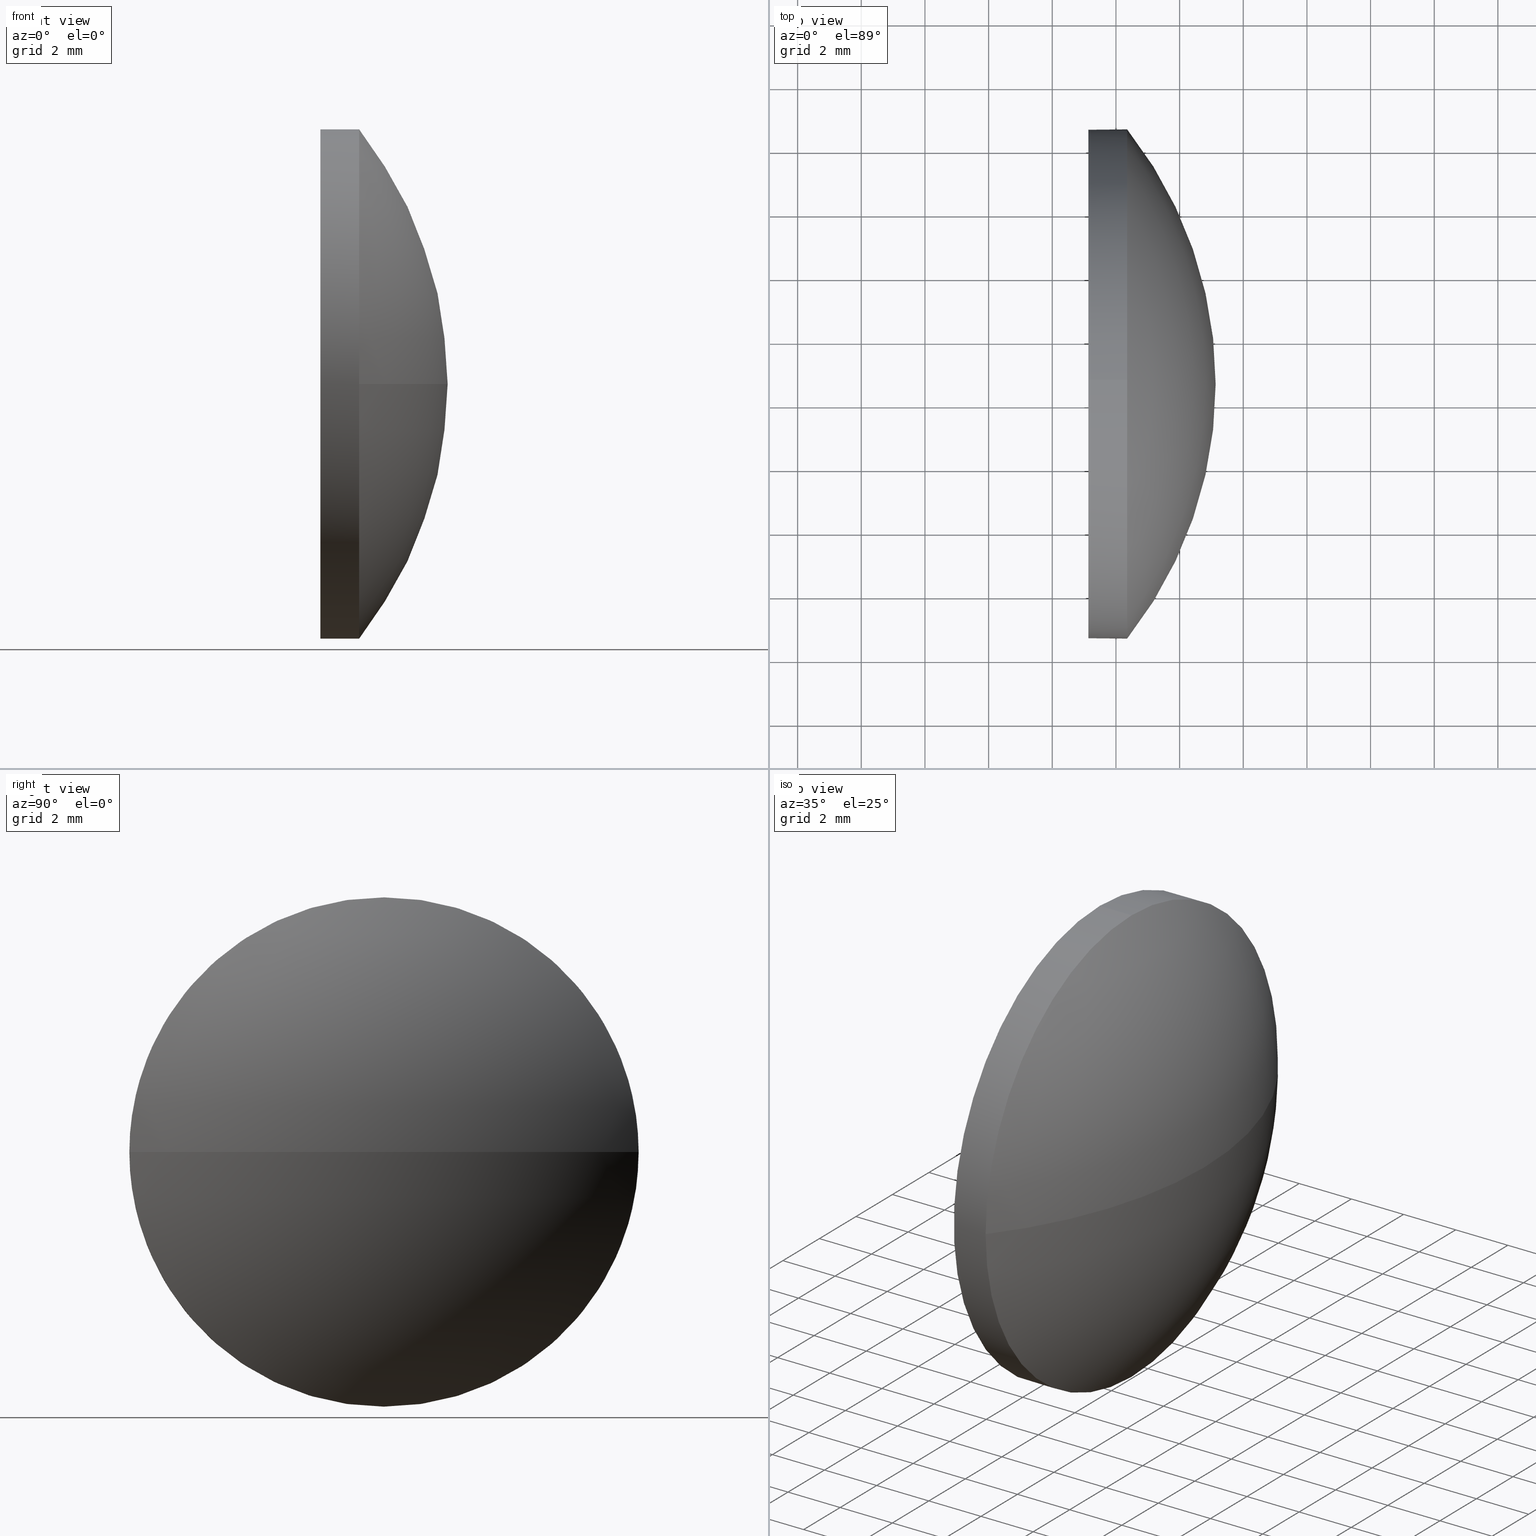
[diagram: canonical four-view strip — front | top / right | iso, engineering-drawing reading convention]
A machine part, canonical four-view strip (front | top / right | iso — engineering-drawing reading convention). The complete STEP part file that produces these views, byte-faithful:
ISO-10303-21;
HEADER;
FILE_DESCRIPTION (( 'STEP AP214' ),
    '1' );
FILE_NAME ('100198.STEP',
    '2019-05-22T06:26:04',
    ( '' ),
    ( '' ),
    'SwSTEP 2.0',
    'SolidWorks 2016',
    '' );
FILE_SCHEMA (( 'AUTOMOTIVE_DESIGN' ));
ENDSEC;

DATA;
#1 = AXIS2_PLACEMENT_3D ( 'NONE', #136, #70, #142 ) ;
#2 =( NAMED_UNIT ( * ) SI_UNIT ( $, .STERADIAN. ) SOLID_ANGLE_UNIT ( ) );
#3 = AXIS2_PLACEMENT_3D ( 'NONE', #152, #55, #153 ) ;
#4 = CARTESIAN_POINT ( 'NONE',  ( 473.4849682115519700, -39.39311848752240100, -8.000000000000000000 ) ) ;
#5 = PRODUCT_DEFINITION_CONTEXT ( 'detailed design', #130, 'design' ) ;
#6 = VERTEX_POINT ( 'NONE', #114 ) ;
#7 = LINE ( 'NONE', #4, #91 ) ;
#8 =( NAMED_UNIT ( * ) SI_UNIT ( $, .STERADIAN. ) SOLID_ANGLE_UNIT ( ) );
#9 = ORIENTED_EDGE ( 'NONE', *, *, #20, .T. ) ;
#10 = PRESENTATION_STYLE_ASSIGNMENT (( #133 ) ) ;
#11 = UNCERTAINTY_MEASURE_WITH_UNIT (LENGTH_MEASURE( 1.000000000000000100E-005 ), #26, 'distance_accuracy_value', 'NONE');
#12 = EDGE_CURVE ( 'NONE', #6, #118, #7, .T. ) ;
#13 = PLANE ( 'NONE',  #3 ) ;
#14 = ORIENTED_EDGE ( 'NONE', *, *, #183, .F. ) ;
#15 = CARTESIAN_POINT ( 'NONE',  ( 479.1329406845434800, -39.39311848752242900, 0.0000000000000000000 ) ) ;
#16 = FACE_OUTER_BOUND ( 'NONE', #78, .T. ) ;
#17 = DIRECTION ( 'NONE',  ( 0.0000000000000000000, 0.0000000000000000000, 1.000000000000000000 ) ) ;
#18 = DIRECTION ( 'NONE',  ( -1.000000000000000000, -0.0000000000000000000, -0.0000000000000000000 ) ) ;
#19 = SPHERICAL_SURFACE ( 'NONE', #51, 12.90079136690647800 ) ;
#20 = EDGE_CURVE ( 'NONE', #6, #125, #148, .T. ) ;
#21 = SURFACE_SIDE_STYLE ('',( #49 ) ) ;
#22 = CIRCLE ( 'NONE', #27, 12.90079136690647800 ) ;
#23 = EDGE_CURVE ( 'NONE', #125, #62, #137, .T. ) ;
#24 = AXIS2_PLACEMENT_3D ( 'NONE', #66, #81, #181 ) ;
#25 = FILL_AREA_STYLE_COLOUR ( '', #129 ) ;
#26 =( LENGTH_UNIT ( ) NAMED_UNIT ( * ) SI_UNIT ( .MILLI., .METRE. ) );
#27 = AXIS2_PLACEMENT_3D ( 'NONE', #112, #138, #45 ) ;
#28 =( NAMED_UNIT ( * ) PLANE_ANGLE_UNIT ( ) SI_UNIT ( $, .RADIAN. ) );
#29 = DIRECTION ( 'NONE',  ( 0.0000000000000000000, 0.0000000000000000000, 1.000000000000000000 ) ) ;
#30 = CARTESIAN_POINT ( 'NONE',  ( 476.3529406845434600, -31.39311848752240800, 0.0000000000000000000 ) ) ;
#31 = EDGE_CURVE ( 'NONE', #62, #146, #170, .T. ) ;
#32 = ORIENTED_EDGE ( 'NONE', *, *, #12, .T. ) ;
#33 = PRODUCT_DEFINITION_SHAPE ( 'NONE', 'NONE',  #102 ) ;
#34 = FACE_OUTER_BOUND ( 'NONE', #93, .T. ) ;
#35 = ORIENTED_EDGE ( 'NONE', *, *, #38, .T. ) ;
#36 = DIRECTION ( 'NONE',  ( 0.0000000000000000000, 0.0000000000000000000, 1.000000000000000000 ) ) ;
#37 = DIRECTION ( 'NONE',  ( -1.000000000000000000, -0.0000000000000000000, -0.0000000000000000000 ) ) ;
#38 = EDGE_CURVE ( 'NONE', #146, #118, #131, .T. ) ;
#39 = CARTESIAN_POINT ( 'NONE',  ( 466.2321493176370400, -39.39311848752242900, 0.0000000000000000000 ) ) ;
#40 = ORIENTED_EDGE ( 'NONE', *, *, #77, .F. ) ;
#41 = SPHERICAL_SURFACE ( 'NONE', #128, 12.90079136690647800 ) ;
#42 = UNCERTAINTY_MEASURE_WITH_UNIT (LENGTH_MEASURE( 1.000000000000000100E-005 ), #63, 'distance_accuracy_value', 'NONE');
#43 = CARTESIAN_POINT ( 'NONE',  ( 473.4849682115519700, -39.39311848752240100, 0.0000000000000000000 ) ) ;
#44 = ORIENTED_EDGE ( 'NONE', *, *, #183, .T. ) ;
#45 = DIRECTION ( 'NONE',  ( 0.0000000000000000000, 1.000000000000000000, 1.224646799147353200E-016 ) ) ;
#46 = FILL_AREA_STYLE_COLOUR ( '', #166 ) ;
#47 = CARTESIAN_POINT ( 'NONE',  ( 476.3529406845434600, -39.39311848752240100, 0.0000000000000000000 ) ) ;
#48 = EDGE_LOOP ( 'NONE', ( #104, #9, #50, #52, #119 ) ) ;
#49 = SURFACE_STYLE_FILL_AREA ( #163 ) ;
#50 = ORIENTED_EDGE ( 'NONE', *, *, #23, .T. ) ;
#51 = AXIS2_PLACEMENT_3D ( 'NONE', #82, #182, #98 ) ;
#52 = ORIENTED_EDGE ( 'NONE', *, *, #31, .T. ) ;
#53 = CIRCLE ( 'NONE', #151, 8.000000000000000000 ) ;
#54 = STYLED_ITEM ( 'NONE', ( #141 ), #139 ) ;
#55 = DIRECTION ( 'NONE',  ( 1.000000000000000000, 0.0000000000000000000, 0.0000000000000000000 ) ) ;
#56 = DIRECTION ( 'NONE',  ( -1.000000000000000000, -0.0000000000000000000, -0.0000000000000000000 ) ) ;
#57 = DIRECTION ( 'NONE',  ( -1.000000000000000000, -0.0000000000000000000, -0.0000000000000000000 ) ) ;
#58 = AXIS2_PLACEMENT_3D ( 'NONE', #115, #100, #175 ) ;
#59 =( GEOMETRIC_REPRESENTATION_CONTEXT ( 3 ) GLOBAL_UNCERTAINTY_ASSIGNED_CONTEXT ( ( #103 ) ) GLOBAL_UNIT_ASSIGNED_CONTEXT ( ( #87, #28, #2 ) ) REPRESENTATION_CONTEXT ( 'NONE', 'WORKASPACE' ) );
#60 = FACE_OUTER_BOUND ( 'NONE', #48, .T. ) ;
#61 = PRESENTATION_LAYER_ASSIGNMENT (  '', '', ( #169 ) ) ;
#62 = VERTEX_POINT ( 'NONE', #144 ) ;
#63 =( LENGTH_UNIT ( ) NAMED_UNIT ( * ) SI_UNIT ( .MILLI., .METRE. ) );
#64 =( GEOMETRIC_REPRESENTATION_CONTEXT ( 3 ) GLOBAL_UNCERTAINTY_ASSIGNED_CONTEXT ( ( #42 ) ) GLOBAL_UNIT_ASSIGNED_CONTEXT ( ( #63, #76, #8 ) ) REPRESENTATION_CONTEXT ( 'NONE', 'WORKASPACE' ) );
#65 = PRODUCT_RELATED_PRODUCT_CATEGORY ( 'part', '', ( #94 ) ) ;
#66 = CARTESIAN_POINT ( 'NONE',  ( 466.2321493176370400, -39.39311848752242900, 0.0000000000000000000 ) ) ;
#67 = DIRECTION ( 'NONE',  ( -1.000000000000000000, -0.0000000000000000000, -0.0000000000000000000 ) ) ;
#68 =( NAMED_UNIT ( * ) SI_UNIT ( $, .STERADIAN. ) SOLID_ANGLE_UNIT ( ) );
#69 = APPLICATION_PROTOCOL_DEFINITION ( 'draft international standard', 'automotive_design', 1998, #110 ) ;
#70 = DIRECTION ( 'NONE',  ( 0.0000000000000000000, 0.0000000000000000000, 1.000000000000000000 ) ) ;
#71 = VERTEX_POINT ( 'NONE', #30 ) ;
#72 = SURFACE_STYLE_USAGE ( .BOTH. , #186 ) ;
#73 = DIRECTION ( 'NONE',  ( 0.0000000000000000000, 0.0000000000000000000, 1.000000000000000000 ) ) ;
#74 = MANIFOLD_SOLID_BREP ( '��ת1', #113 ) ;
#75 = ORIENTED_EDGE ( 'NONE', *, *, #31, .F. ) ;
#76 =( NAMED_UNIT ( * ) PLANE_ANGLE_UNIT ( ) SI_UNIT ( $, .RADIAN. ) );
#77 = EDGE_CURVE ( 'NONE', #109, #125, #22, .T. ) ;
#78 = EDGE_LOOP ( 'NONE', ( #44, #32, #149, #75, #80 ) ) ;
#79 = CYLINDRICAL_SURFACE ( 'NONE', #180, 8.000000000000000000 ) ;
#80 = ORIENTED_EDGE ( 'NONE', *, *, #134, .T. ) ;
#81 = DIRECTION ( 'NONE',  ( -0.0000000000000000000, 0.0000000000000000000, 1.000000000000000000 ) ) ;
#82 = CARTESIAN_POINT ( 'NONE',  ( 466.2321493176370400, -39.39311848752242900, 0.0000000000000000000 ) ) ;
#83 = ORIENTED_EDGE ( 'NONE', *, *, #177, .F. ) ;
#84 = VECTOR ( 'NONE', #18, 1000.000000000000000 ) ;
#85 = CARTESIAN_POINT ( 'NONE',  ( 475.1329406845434300, -39.39311848752240100, 0.0000000000000000000 ) ) ;
#86 = DIRECTION ( 'NONE',  ( -0.0000000000000000000, 0.0000000000000000000, -1.000000000000000000 ) ) ;
#87 =( LENGTH_UNIT ( ) NAMED_UNIT ( * ) SI_UNIT ( .MILLI., .METRE. ) );
#88 = PRESENTATION_LAYER_ASSIGNMENT (  '', '', ( #54 ) ) ;
#89 = CARTESIAN_POINT ( 'NONE',  ( 473.4849682115519700, -39.39311848752240100, 8.000000000000000000 ) ) ;
#90 = CIRCLE ( 'NONE', #24, 12.90079136690647100 ) ;
#91 = VECTOR ( 'NONE', #161, 1000.000000000000000 ) ;
#92 = MECHANICAL_DESIGN_GEOMETRIC_PRESENTATION_REPRESENTATION (  '', ( #169 ), #64 ) ;
#93 = EDGE_LOOP ( 'NONE', ( #35, #154 ) ) ;
#94 = PRODUCT ( '100198', '100198', '', ( #99 ) ) ;
#95 = CYLINDRICAL_SURFACE ( 'NONE', #117, 8.000000000000000000 ) ;
#96 = MECHANICAL_DESIGN_GEOMETRIC_PRESENTATION_REPRESENTATION (  '', ( #54 ), #59 ) ;
#97 = CARTESIAN_POINT ( 'NONE',  ( 476.3529406845434600, -39.39311848752240100, 0.0000000000000000000 ) ) ;
#98 = DIRECTION ( 'NONE',  ( 0.0000000000000000000, 1.000000000000000000, 0.0000000000000000000 ) ) ;
#99 = PRODUCT_CONTEXT ( 'NONE', #110, 'mechanical' ) ;
#100 = DIRECTION ( 'NONE',  ( -1.000000000000000000, -0.0000000000000000000, -0.0000000000000000000 ) ) ;
#101 = ADVANCED_FACE ( 'NONE', ( #34 ), #13, .F. ) ;
#102 = PRODUCT_DEFINITION ( 'δ֪', '', #174, #5 ) ;
#103 = UNCERTAINTY_MEASURE_WITH_UNIT (LENGTH_MEASURE( 1.000000000000000100E-005 ), #87, 'distance_accuracy_value', 'NONE');
#104 = ORIENTED_EDGE ( 'NONE', *, *, #12, .F. ) ;
#105 = ADVANCED_FACE ( 'NONE', ( #60 ), #95, .T. ) ;
#106 = CARTESIAN_POINT ( 'NONE',  ( 475.1329406845434300, -39.39311848752240100, -8.000000000000000000 ) ) ;
#107 = DIRECTION ( 'NONE',  ( 0.0000000000000000000, 0.0000000000000000000, 1.000000000000000000 ) ) ;
#108 = DIRECTION ( 'NONE',  ( 0.0000000000000000000, 1.000000000000000000, 0.0000000000000000000 ) ) ;
#109 = VERTEX_POINT ( 'NONE', #15 ) ;
#110 = APPLICATION_CONTEXT ( 'automotive_design' ) ;
#111 = CARTESIAN_POINT ( 'NONE',  ( 475.1329406845434300, -39.39311848752240100, 0.0000000000000000000 ) ) ;
#112 = CARTESIAN_POINT ( 'NONE',  ( 466.2321493176370400, -39.39311848752242900, 0.0000000000000000000 ) ) ;
#113 = CLOSED_SHELL ( 'NONE', ( #123, #121, #150, #105, #101 ) ) ;
#114 = CARTESIAN_POINT ( 'NONE',  ( 476.3529406845434600, -39.39311848752240100, -8.000000000000000000 ) ) ;
#115 = CARTESIAN_POINT ( 'NONE',  ( 476.3529406845434600, -39.39311848752240100, 0.0000000000000000000 ) ) ;
#116 = EDGE_LOOP ( 'NONE', ( #83, #132, #179, #14 ) ) ;
#117 = AXIS2_PLACEMENT_3D ( 'NONE', #171, #67, #124 ) ;
#118 = VERTEX_POINT ( 'NONE', #106 ) ;
#119 = ORIENTED_EDGE ( 'NONE', *, *, #176, .F. ) ;
#120 = CIRCLE ( 'NONE', #164, 8.000000000000000000 ) ;
#121 = ADVANCED_FACE ( 'NONE', ( #155 ), #41, .T. ) ;
#122 =( GEOMETRIC_REPRESENTATION_CONTEXT ( 3 ) GLOBAL_UNCERTAINTY_ASSIGNED_CONTEXT ( ( #11 ) ) GLOBAL_UNIT_ASSIGNED_CONTEXT ( ( #26, #127, #68 ) ) REPRESENTATION_CONTEXT ( 'NONE', 'WORKASPACE' ) );
#123 = ADVANCED_FACE ( 'NONE', ( #16 ), #79, .T. ) ;
#124 = DIRECTION ( 'NONE',  ( 0.0000000000000000000, 0.0000000000000000000, 1.000000000000000000 ) ) ;
#125 = VERTEX_POINT ( 'NONE', #140 ) ;
#126 = FACE_OUTER_BOUND ( 'NONE', #165, .T. ) ;
#127 =( NAMED_UNIT ( * ) PLANE_ANGLE_UNIT ( ) SI_UNIT ( $, .RADIAN. ) );
#128 = AXIS2_PLACEMENT_3D ( 'NONE', #39, #86, #108 ) ;
#129 = COLOUR_RGB ( '',1.000000000000000000, 1.000000000000000000, 1.000000000000000000 ) ;
#130 = APPLICATION_CONTEXT ( 'automotive_design' ) ;
#131 = CIRCLE ( 'NONE', #167, 8.000000000000000000 ) ;
#132 = ORIENTED_EDGE ( 'NONE', *, *, #77, .T. ) ;
#133 = SURFACE_STYLE_USAGE ( .BOTH. , #21 ) ;
#134 = EDGE_CURVE ( 'NONE', #62, #71, #53, .T. ) ;
#135 = SHAPE_DEFINITION_REPRESENTATION ( #33, #139 ) ;
#136 = CARTESIAN_POINT ( 'NONE',  ( 0.0000000000000000000, 0.0000000000000000000, 0.0000000000000000000 ) ) ;
#137 = CIRCLE ( 'NONE', #160, 8.000000000000000000 ) ;
#138 = DIRECTION ( 'NONE',  ( 0.0000000000000000000, 1.224646799147353200E-016, -1.000000000000000000 ) ) ;
#139 = ADVANCED_BREP_SHAPE_REPRESENTATION ( '100198', ( #74, #1 ), #122 ) ;
#140 = CARTESIAN_POINT ( 'NONE',  ( 476.3529406845434600, -47.39311848752242200, -9.797174393178821700E-016 ) ) ;
#141 = PRESENTATION_STYLE_ASSIGNMENT (( #72 ) ) ;
#142 = DIRECTION ( 'NONE',  ( 1.000000000000000000, 0.0000000000000000000, 0.0000000000000000000 ) ) ;
#143 = AXIS2_PLACEMENT_3D ( 'NONE', #85, #56, #156 ) ;
#144 = CARTESIAN_POINT ( 'NONE',  ( 476.3529406845434600, -39.39311848752240100, 8.000000000000000000 ) ) ;
#145 = DIRECTION ( 'NONE',  ( -1.000000000000000000, -0.0000000000000000000, -0.0000000000000000000 ) ) ;
#146 = VERTEX_POINT ( 'NONE', #168 ) ;
#147 = ORIENTED_EDGE ( 'NONE', *, *, #23, .F. ) ;
#148 = CIRCLE ( 'NONE', #58, 8.000000000000000000 ) ;
#149 = ORIENTED_EDGE ( 'NONE', *, *, #38, .F. ) ;
#150 = ADVANCED_FACE ( 'NONE', ( #126 ), #19, .T. ) ;
#151 = AXIS2_PLACEMENT_3D ( 'NONE', #97, #172, #107 ) ;
#152 = CARTESIAN_POINT ( 'NONE',  ( 475.1329406845434300, -39.39311848752240100, 0.0000000000000000000 ) ) ;
#153 = DIRECTION ( 'NONE',  ( 0.0000000000000000000, 0.0000000000000000000, -1.000000000000000000 ) ) ;
#154 = ORIENTED_EDGE ( 'NONE', *, *, #176, .T. ) ;
#155 = FACE_OUTER_BOUND ( 'NONE', #116, .T. ) ;
#156 = DIRECTION ( 'NONE',  ( 0.0000000000000000000, 0.0000000000000000000, 1.000000000000000000 ) ) ;
#157 = ORIENTED_EDGE ( 'NONE', *, *, #177, .T. ) ;
#158 = APPLICATION_PROTOCOL_DEFINITION ( 'draft international standard', 'automotive_design', 1998, #130 ) ;
#159 = DIRECTION ( 'NONE',  ( -1.000000000000000000, -0.0000000000000000000, -0.0000000000000000000 ) ) ;
#160 = AXIS2_PLACEMENT_3D ( 'NONE', #47, #145, #73 ) ;
#161 = DIRECTION ( 'NONE',  ( -1.000000000000000000, -0.0000000000000000000, -0.0000000000000000000 ) ) ;
#162 = ORIENTED_EDGE ( 'NONE', *, *, #134, .F. ) ;
#163 = FILL_AREA_STYLE ('',( #46 ) ) ;
#164 = AXIS2_PLACEMENT_3D ( 'NONE', #173, #37, #36 ) ;
#165 = EDGE_LOOP ( 'NONE', ( #40, #157, #162, #147 ) ) ;
#166 = COLOUR_RGB ( '',1.000000000000000000, 1.000000000000000000, 1.000000000000000000 ) ;
#167 = AXIS2_PLACEMENT_3D ( 'NONE', #111, #159, #29 ) ;
#168 = CARTESIAN_POINT ( 'NONE',  ( 475.1329406845434300, -39.39311848752240100, 8.000000000000000000 ) ) ;
#169 = STYLED_ITEM ( 'NONE', ( #10 ), #74 ) ;
#170 = LINE ( 'NONE', #89, #84 ) ;
#171 = CARTESIAN_POINT ( 'NONE',  ( 473.4849682115519700, -39.39311848752240100, 0.0000000000000000000 ) ) ;
#172 = DIRECTION ( 'NONE',  ( -1.000000000000000000, -0.0000000000000000000, -0.0000000000000000000 ) ) ;
#173 = CARTESIAN_POINT ( 'NONE',  ( 476.3529406845434600, -39.39311848752240100, 0.0000000000000000000 ) ) ;
#174 = PRODUCT_DEFINITION_FORMATION_WITH_SPECIFIED_SOURCE ( '�κ�', '', #94, .NOT_KNOWN. ) ;
#175 = DIRECTION ( 'NONE',  ( 0.0000000000000000000, 0.0000000000000000000, 1.000000000000000000 ) ) ;
#176 = EDGE_CURVE ( 'NONE', #118, #146, #184, .T. ) ;
#177 = EDGE_CURVE ( 'NONE', #109, #71, #90, .T. ) ;
#178 = SURFACE_STYLE_FILL_AREA ( #185 ) ;
#179 = ORIENTED_EDGE ( 'NONE', *, *, #20, .F. ) ;
#180 = AXIS2_PLACEMENT_3D ( 'NONE', #43, #57, #17 ) ;
#181 = DIRECTION ( 'NONE',  ( 1.000000000000000000, 0.0000000000000000000, 0.0000000000000000000 ) ) ;
#182 = DIRECTION ( 'NONE',  ( -0.0000000000000000000, 0.0000000000000000000, -1.000000000000000000 ) ) ;
#183 = EDGE_CURVE ( 'NONE', #71, #6, #120, .T. ) ;
#184 = CIRCLE ( 'NONE', #143, 8.000000000000000000 ) ;
#185 = FILL_AREA_STYLE ('',( #25 ) ) ;
#186 = SURFACE_SIDE_STYLE ('',( #178 ) ) ;
ENDSEC;
END-ISO-10303-21;
